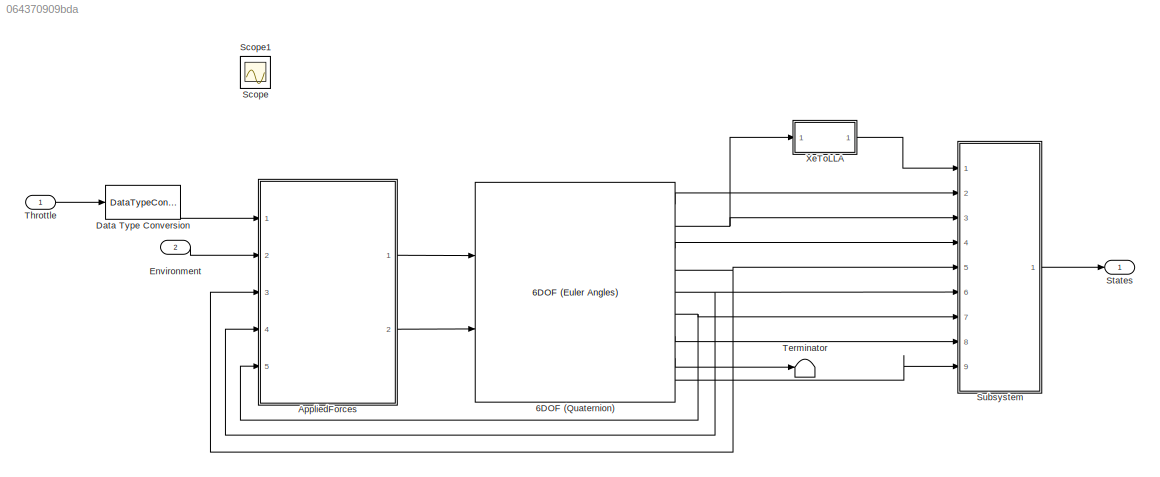
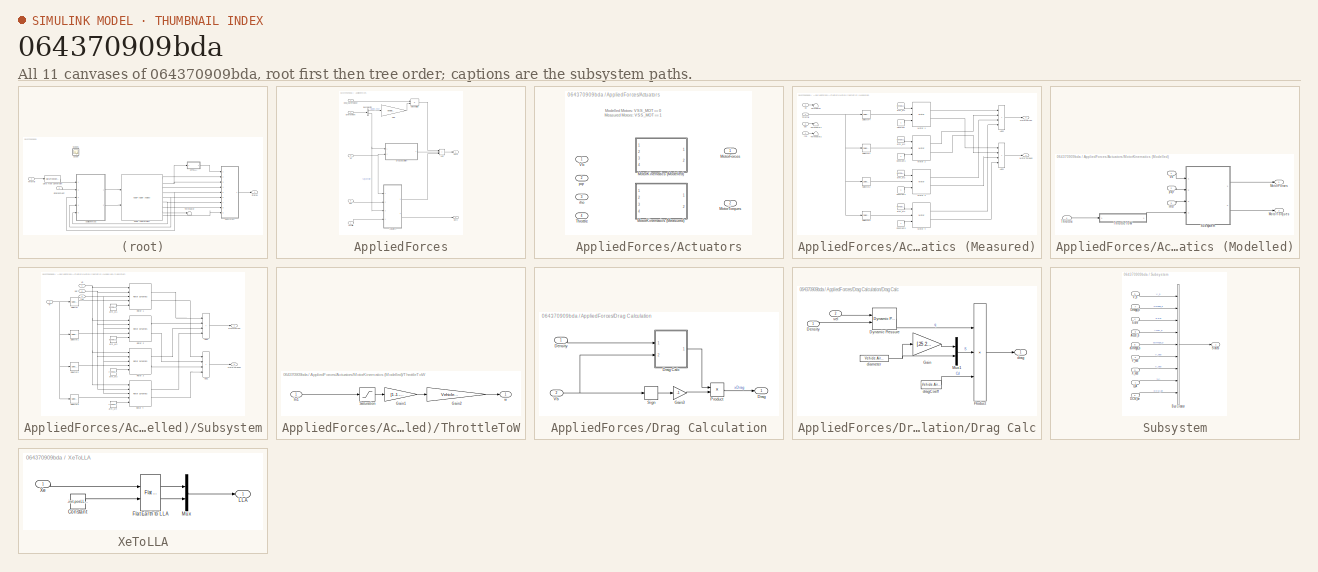
[diagram: thumbnail index - all 11 canvases of the model, root first then tree order]
MODEL slx_064370909bda
KIND model
CONFIG AbsTol = auto
CONFIG EnableMultiTasking = on
CONFIG FixedStep = Ts
CONFIG MaxStep = auto
CONFIG MinStep = auto
CONFIG RelTol = 1e-3
CONFIG SampleTimeConstraint = Unconstrained
CONFIG SolverName = ode3
CONFIG StartTime = 0.0
CONFIG StopTime = 10.0
BLOCK [Reference] 6DOF (Quaternion)  REF=shared6dof/6DOF (Euler Angles)
  Ports = [2, 9]
  SourceBlock = shared6dof/6DOF (Euler Angles)
  SourceProductBaseCode = AE,PW,MT,UV,VE,VP
  SourceType = 6DOF EoM (Body Axis)
BLOCK [SubSystem] AppliedForces
  Ports = [5, 2]
  RequestExecContextInheritance = off
  TreatAsAtomicUnit = on
BLOCK [SubSystem] AppliedForces/Actuators
  Ports = [4, 2]
  RequestExecContextInheritance = off
  Variant = on
BLOCK [Outport] AppliedForces/Actuators/MotorForces
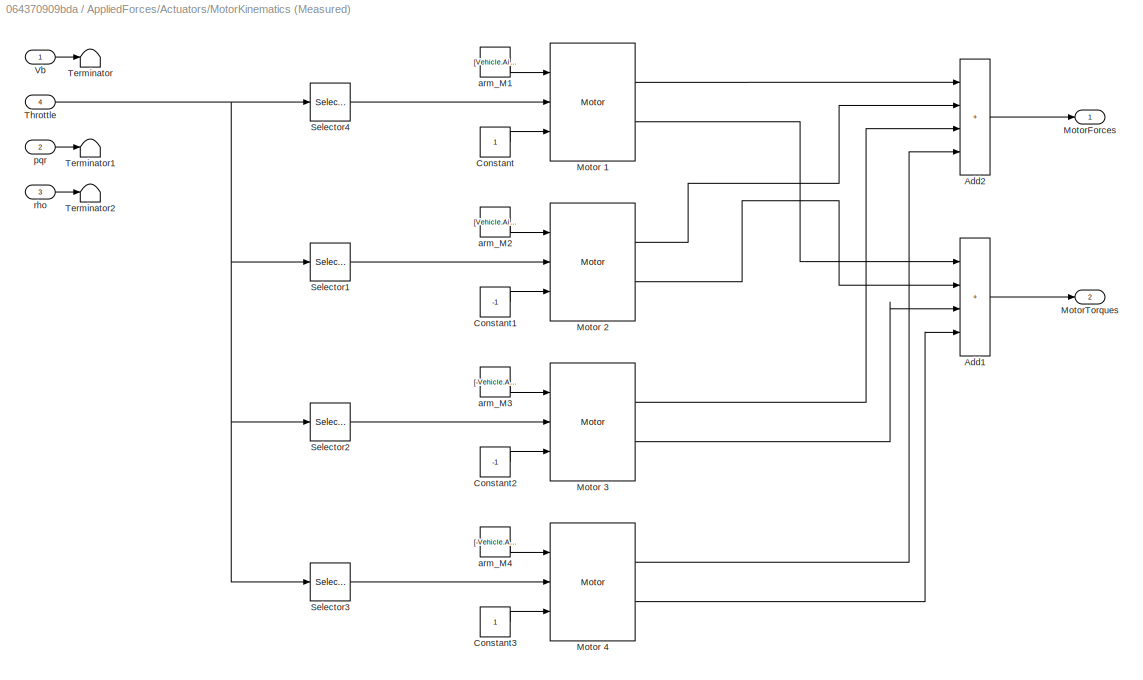
BLOCK [SubSystem] AppliedForces/Actuators/MotorKinematics (Measured)
  Ports = [4, 2]
  RequestExecContextInheritance = off
  VariantControl = VSS_measMotor
BLOCK [Sum] AppliedForces/Actuators/MotorKinematics (Measured)/Add1
  IconShape = rectangular
  Inputs = ++++
  Ports = [4, 1]
BLOCK [Sum] AppliedForces/Actuators/MotorKinematics (Measured)/Add2
  IconShape = rectangular
  Inputs = ++++
  Ports = [4, 1]
BLOCK [Constant] AppliedForces/Actuators/MotorKinematics (Measured)/Constant
BLOCK [Constant] AppliedForces/Actuators/MotorKinematics (Measured)/Constant1
  Value = -1
BLOCK [Constant] AppliedForces/Actuators/MotorKinematics (Measured)/Constant2
  Value = -1
BLOCK [Constant] AppliedForces/Actuators/MotorKinematics (Measured)/Constant3
BLOCK [Reference] AppliedForces/Actuators/MotorKinematics (Measured)/Motor 1  REF=motorLib/Motor
  Ports = [3, 2]
  SourceBlock = motorLib/Motor
  SourceType = SubSystem
BLOCK [Reference] AppliedForces/Actuators/MotorKinematics (Measured)/Motor 2  REF=motorLib/Motor
  Ports = [3, 2]
  SourceBlock = motorLib/Motor
  SourceType = SubSystem
BLOCK [Reference] AppliedForces/Actuators/MotorKinematics (Measured)/Motor 3  REF=motorLib/Motor
  Ports = [3, 2]
  SourceBlock = motorLib/Motor
  SourceType = SubSystem
BLOCK [Reference] AppliedForces/Actuators/MotorKinematics (Measured)/Motor 4  REF=motorLib/Motor
  Ports = [3, 2]
  SourceBlock = motorLib/Motor
  SourceType = SubSystem
BLOCK [Outport] AppliedForces/Actuators/MotorKinematics (Measured)/MotorForces
BLOCK [Outport] AppliedForces/Actuators/MotorKinematics (Measured)/MotorTorques
  Port = 2
BLOCK [Selector] AppliedForces/Actuators/MotorKinematics (Measured)/Selector1
  IndexOptions = Index vector (dialog)
  Indices = 2
  InputPortWidth = 4
  OutputSizes = 1
  Ports = [1, 1]
BLOCK [Selector] AppliedForces/Actuators/MotorKinematics (Measured)/Selector2
  IndexOptions = Index vector (dialog)
  Indices = 3
  InputPortWidth = 4
  OutputSizes = 1
  Ports = [1, 1]
BLOCK [Selector] AppliedForces/Actuators/MotorKinematics (Measured)/Selector3
  IndexOptions = Index vector (dialog)
  Indices = 4
  InputPortWidth = 4
  OutputSizes = 1
  Ports = [1, 1]
BLOCK [Selector] AppliedForces/Actuators/MotorKinematics (Measured)/Selector4
  IndexOptions = Index vector (dialog)
  Indices = 1
  InputPortWidth = 4
  OutputSizes = 1
  Ports = [1, 1]
BLOCK [Terminator] AppliedForces/Actuators/MotorKinematics (Measured)/Terminator
BLOCK [Terminator] AppliedForces/Actuators/MotorKinematics (Measured)/Terminator1
BLOCK [Terminator] AppliedForces/Actuators/MotorKinematics (Measured)/Terminator2
BLOCK [Inport] AppliedForces/Actuators/MotorKinematics (Measured)/Throttle
  Port = 4
BLOCK [Inport] AppliedForces/Actuators/MotorKinematics (Measured)/Vb
BLOCK [Constant] AppliedForces/Actuators/MotorKinematics (Measured)/arm_M1
  Value = [Vehicle.Airframe.orthagPropDistance Vehicle.Airframe.orthagPropDistance Vehicle.Airframe.propHeight]
BLOCK [Constant] AppliedForces/Actuators/MotorKinematics (Measured)/arm_M2
  Value = [Vehicle.Airframe.orthagPropDistance -Vehicle.Airframe.orthagPropDistance Vehicle.Airframe.propHeight]
BLOCK [Constant] AppliedForces/Actuators/MotorKinematics (Measured)/arm_M3
  Value = [-Vehicle.Airframe.orthagPropDistance Vehicle.Airframe.orthagPropDistance Vehicle.Airframe.propHeight]
BLOCK [Constant] AppliedForces/Actuators/MotorKinematics (Measured)/arm_M4
  Value = [-Vehicle.Airframe.orthagPropDistance -Vehicle.Airframe.orthagPropDistance Vehicle.Airframe.propHeight]
BLOCK [Inport] AppliedForces/Actuators/MotorKinematics (Measured)/pqr
  Port = 2
BLOCK [Inport] AppliedForces/Actuators/MotorKinematics (Measured)/rho
  Port = 3
BLOCK [SubSystem] AppliedForces/Actuators/MotorKinematics (Modelled)
  Ports = [4, 2]
  RequestExecContextInheritance = off
  VariantControl = VSS_modMotor
BLOCK [Outport] AppliedForces/Actuators/MotorKinematics (Modelled)/MotorForces
BLOCK [Outport] AppliedForces/Actuators/MotorKinematics (Modelled)/MotorTorques
  Port = 2
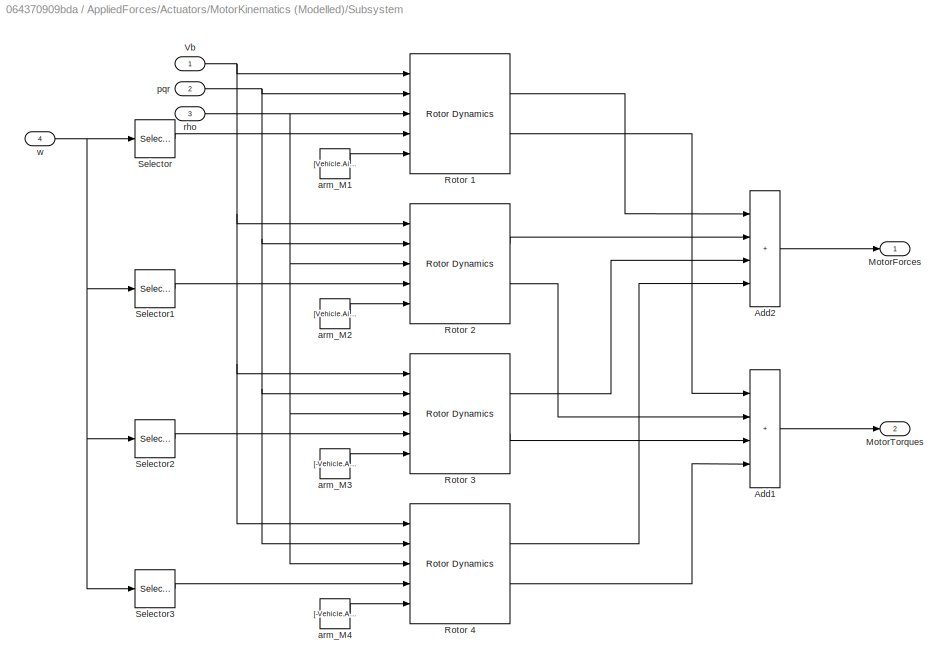
BLOCK [SubSystem] AppliedForces/Actuators/MotorKinematics (Modelled)/Subsystem
  Ports = [4, 2]
  RequestExecContextInheritance = off
BLOCK [Sum] AppliedForces/Actuators/MotorKinematics (Modelled)/Subsystem/Add1
  IconShape = rectangular
  Inputs = ++++
  Ports = [4, 1]
BLOCK [Sum] AppliedForces/Actuators/MotorKinematics (Modelled)/Subsystem/Add2
  IconShape = rectangular
  Inputs = ++++
  Ports = [4, 1]
BLOCK [Outport] AppliedForces/Actuators/MotorKinematics (Modelled)/Subsystem/MotorForces
BLOCK [Outport] AppliedForces/Actuators/MotorKinematics (Modelled)/Subsystem/MotorTorques
  Port = 2
BLOCK [Reference] AppliedForces/Actuators/MotorKinematics (Modelled)/Subsystem/Rotor 1  REF=dynamicsLibrary/Rotor Dynamics
  Ports = [5, 2]
  SourceBlock = dynamicsLibrary/Rotor Dynamics
BLOCK [Reference] AppliedForces/Actuators/MotorKinematics (Modelled)/Subsystem/Rotor 2  REF=dynamicsLibrary/Rotor Dynamics
  Ports = [5, 2]
  SourceBlock = dynamicsLibrary/Rotor Dynamics
BLOCK [Reference] AppliedForces/Actuators/MotorKinematics (Modelled)/Subsystem/Rotor 3  REF=dynamicsLibrary/Rotor Dynamics
  Ports = [5, 2]
  SourceBlock = dynamicsLibrary/Rotor Dynamics
BLOCK [Reference] AppliedForces/Actuators/MotorKinematics (Modelled)/Subsystem/Rotor 4  REF=dynamicsLibrary/Rotor Dynamics
  Ports = [5, 2]
  SourceBlock = dynamicsLibrary/Rotor Dynamics
BLOCK [Selector] AppliedForces/Actuators/MotorKinematics (Modelled)/Subsystem/Selector
  IndexOptions = Index vector (dialog)
  Indices = 1
  InputPortWidth = 4
  OutputSizes = 1
  Ports = [1, 1]
BLOCK [Selector] AppliedForces/Actuators/MotorKinematics (Modelled)/Subsystem/Selector1
  IndexOptions = Index vector (dialog)
  Indices = 2
  InputPortWidth = 4
  OutputSizes = 1
  Ports = [1, 1]
BLOCK [Selector] AppliedForces/Actuators/MotorKinematics (Modelled)/Subsystem/Selector2
  IndexOptions = Index vector (dialog)
  Indices = 3
  InputPortWidth = 4
  OutputSizes = 1
  Ports = [1, 1]
BLOCK [Selector] AppliedForces/Actuators/MotorKinematics (Modelled)/Subsystem/Selector3
  IndexOptions = Index vector (dialog)
  Indices = 4
  InputPortWidth = 4
  OutputSizes = 1
  Ports = [1, 1]
BLOCK [Inport] AppliedForces/Actuators/MotorKinematics (Modelled)/Subsystem/Vb
BLOCK [Constant] AppliedForces/Actuators/MotorKinematics (Modelled)/Subsystem/arm_M1
  Value = [Vehicle.Airframe.orthagPropDistance Vehicle.Airframe.orthagPropDistance Vehicle.Airframe.propHeight]
BLOCK [Constant] AppliedForces/Actuators/MotorKinematics (Modelled)/Subsystem/arm_M2
  Value = [Vehicle.Airframe.orthagPropDistance -Vehicle.Airframe.orthagPropDistance Vehicle.Airframe.propHeight]
BLOCK [Constant] AppliedForces/Actuators/MotorKinematics (Modelled)/Subsystem/arm_M3
  Value = [-Vehicle.Airframe.orthagPropDistance Vehicle.Airframe.orthagPropDistance Vehicle.Airframe.propHeight]
BLOCK [Constant] AppliedForces/Actuators/MotorKinematics (Modelled)/Subsystem/arm_M4
  Value = [-Vehicle.Airframe.orthagPropDistance -Vehicle.Airframe.orthagPropDistance Vehicle.Airframe.propHeight]
BLOCK [Inport] AppliedForces/Actuators/MotorKinematics (Modelled)/Subsystem/pqr
  Port = 2
BLOCK [Inport] AppliedForces/Actuators/MotorKinematics (Modelled)/Subsystem/rho
  Port = 3
BLOCK [Inport] AppliedForces/Actuators/MotorKinematics (Modelled)/Subsystem/w
  Port = 4
BLOCK [Inport] AppliedForces/Actuators/MotorKinematics (Modelled)/Throttle
  Port = 4
BLOCK [SubSystem] AppliedForces/Actuators/MotorKinematics (Modelled)/ThrottleToW
  Ports = [1, 1]
  RequestExecContextInheritance = off
BLOCK [Gain] AppliedForces/Actuators/MotorKinematics (Modelled)/ThrottleToW/Gain1
  Gain = [1 -1 -1 1]
BLOCK [Gain] AppliedForces/Actuators/MotorKinematics (Modelled)/ThrottleToW/Gain2
  Gain = Vehicle.Motor.Throttle2w
BLOCK [Inport] AppliedForces/Actuators/MotorKinematics (Modelled)/ThrottleToW/In1
BLOCK [Saturate] AppliedForces/Actuators/MotorKinematics (Modelled)/ThrottleToW/Saturation
  LinearizeAsGain = off
  LowerLimit = 30
  UpperLimit = 1000
BLOCK [Outport] AppliedForces/Actuators/MotorKinematics (Modelled)/ThrottleToW/w
BLOCK [Inport] AppliedForces/Actuators/MotorKinematics (Modelled)/Vb
BLOCK [Inport] AppliedForces/Actuators/MotorKinematics (Modelled)/pqr
  Port = 2
BLOCK [Inport] AppliedForces/Actuators/MotorKinematics (Modelled)/rho
  Port = 3
BLOCK [Outport] AppliedForces/Actuators/MotorTorques
  Port = 2
BLOCK [Inport] AppliedForces/Actuators/Throttle
  Port = 4
BLOCK [Inport] AppliedForces/Actuators/Vb
BLOCK [Inport] AppliedForces/Actuators/pqr
  Port = 2
BLOCK [Inport] AppliedForces/Actuators/rho
  Port = 3
BLOCK [Sum] AppliedForces/Add
  IconShape = rectangular
  Inputs = +++
  Ports = [3, 1]
BLOCK [BusSelector] AppliedForces/Bus Selector
  OutputSignals = Gravity_ned,AtmosphereBus.air_density
  Ports = [1, 2]
BLOCK [Inport] AppliedForces/DCM_earthToBody
  Port = 3
BLOCK [SubSystem] AppliedForces/Drag Calculation
  Ports = [2, 1]
  RequestExecContextInheritance = off
BLOCK [Inport] AppliedForces/Drag Calculation/Density
  Unit = kg/m^3
BLOCK [Outport] AppliedForces/Drag Calculation/Drag
  Unit = N
  VectorParamsAs1DForOutWhenUnconnected = off
BLOCK [SubSystem] AppliedForces/Drag Calculation/Drag Calc
  Ports = [2, 1]
  RequestExecContextInheritance = off
BLOCK [Inport] AppliedForces/Drag Calculation/Drag Calc/Density
  Unit = kg/m^3
BLOCK [Reference] AppliedForces/Drag Calculation/Drag Calc/Dynamic Pressure  REF=aerolibasang/Dynamic Pressure
  Ports = [2, 1]
  SourceBlock = aerolibasang/Dynamic Pressure
  SourceProductBaseCode = AE
  SourceType = Dynamic Pressure
BLOCK [Gain] AppliedForces/Drag Calculation/Drag Calc/Gain
  Gain = [.25 .25]
BLOCK [Mux] AppliedForces/Drag Calculation/Drag Calc/Mux1
  DisplayOption = bar
  Inputs = 2
  Ports = [2, 1]
BLOCK [Product] AppliedForces/Drag Calculation/Drag Calc/Product
  Inputs = 3
  Ports = [3, 1]
  RndMeth = Zero
BLOCK [Constant] AppliedForces/Drag Calculation/Drag Calc/diameter
  SampleTime = 0
  Value = Vehicle.Airframe.diameter
BLOCK [Outport] AppliedForces/Drag Calculation/Drag Calc/drag
  Unit = N
  VectorParamsAs1DForOutWhenUnconnected = off
BLOCK [Constant] AppliedForces/Drag Calculation/Drag Calc/dragCoeff
  SampleTime = 0
  Value = Vehicle.Airframe.Cdx
BLOCK [Inport] AppliedForces/Drag Calculation/Drag Calc/vel
  Port = 2
  Unit = m/s
BLOCK [Gain] AppliedForces/Drag Calculation/Gain3
  Gain = -1
BLOCK [Product] AppliedForces/Drag Calculation/Product
  Ports = [2, 1]
  RndMeth = Zero
BLOCK [Signum] AppliedForces/Drag Calculation/Sign
  ZeroCross = off
BLOCK [Inport] AppliedForces/Drag Calculation/Vb
  Port = 2
  Unit = m/second
BLOCK [Inport] AppliedForces/Environment
  OutDataTypeStr = Bus: EnvironmentBus
  Port = 2
BLOCK [Outport] AppliedForces/Fxyz
BLOCK [Gain] AppliedForces/Gain
  Gain = Vehicle.Airframe.mass
BLOCK [Product] AppliedForces/Matrix Multiply
  Multiplication = Matrix(*)
  Ports = [2, 1]
BLOCK [Outport] AppliedForces/Mxyz
  Port = 2
BLOCK [Inport] AppliedForces/Throttle
BLOCK [Inport] AppliedForces/Vb
  Port = 4
BLOCK [Inport] AppliedForces/pqr
  Port = 5
BLOCK [DataTypeConversion] Data Type Conversion
  OutDataTypeStr = double
  RndMeth = Floor
  SaturateOnIntegerOverflow = off
BLOCK [Inport] Environment
  Interpolate = off
  OutDataTypeStr = Bus: EnvironmentBus
  Port = 2
BLOCK [Scope] Scope
  Floating = off
  IOType = viewer
  NumInputPorts = 1
  Ports = []
  ScopeSpecificationString = Simulink.scopes.TimeScopeBlockCfg('CurrentConfiguration', extmgr.ConfigurationSet(extmgr.Configuration('Core','General UI',true),extmgr.Configuration('Core','Source UI',true),extmgr.Configuration('Sources','WiredSimulink',true),extmgr.Configuration('Visuals','Time Domain',true,'SerializedDisplays',{struct('MinYLimReal','-7.51941','MaxYLimReal','0.83549','YLabelReal','','MinYLimMag','0.00000','MaxY...<+1599ch>
BLOCK [Scope] Scope1
  Floating = off
  IOType = viewer
  NumInputPorts = 1
  Ports = []
  ScopeSpecificationString = Simulink.scopes.TimeScopeBlockCfg('CurrentConfiguration', extmgr.ConfigurationSet(extmgr.Configuration('Core','General UI',true),extmgr.Configuration('Core','Source UI',true),extmgr.Configuration('Sources','WiredSimulink',true,'DataLoggingVariableName','ScopeData1'),extmgr.Configuration('Visuals','Time Domain',true,'SerializedDisplays',{struct('MinYLimReal','-0.64986','MaxYLimReal','0.64986','YLab...<+1653ch>
BLOCK [Outport] States
  OutDataTypeStr = Bus: StatesBus
BLOCK [SubSystem] Subsystem
  Ports = [9, 1]
  RequestExecContextInheritance = off
BLOCK [Inport] Subsystem/Accel_b
  Port = 9
BLOCK [BusCreator] Subsystem/Bus Creator
  DisplayOption = bar
  InheritFromInputs = off
  Inputs = 9
  OutDataTypeStr = Bus: StatesBus
  Ports = [9, 1]
BLOCK [Inport] Subsystem/DCM_be
  Port = 5
BLOCK [Inport] Subsystem/Euler
  Port = 4
BLOCK [Inport] Subsystem/LLA
BLOCK [Inport] Subsystem/Omega_b
  Port = 7
BLOCK [Outport] Subsystem/States
BLOCK [Inport] Subsystem/V_b
  Port = 6
BLOCK [Inport] Subsystem/V_ned
  Port = 2
BLOCK [Inport] Subsystem/X_ned
  Port = 3
BLOCK [Inport] Subsystem/dOmega_b
  Port = 8
BLOCK [Terminator] Terminator
BLOCK [Inport] Throttle
  OutDataTypeStr = uint16
  PortDimensions = [1 4]
BLOCK [SubSystem] XeToLLA
  Ports = [1, 1]
  RequestExecContextInheritance = off
BLOCK [Constant] XeToLLA/Constant
  Value = -init.posLLA(3)
BLOCK [Reference] XeToLLA/Flat Earth to LLA  REF=aerolibtransform2/Flat Earth to LLA
  Ports = [2, 2]
  SourceBlock = aerolibtransform2/Flat Earth to LLA
  SourceProductBaseCode = AE
  SourceType = Flat Earth to LLA
BLOCK [Outport] XeToLLA/LLA
BLOCK [Mux] XeToLLA/Mux
  DisplayOption = bar
  Inputs = 2
  Ports = [2, 1]
BLOCK [Inport] XeToLLA/Xe
ANNOTATION AppliedForces/Actuators: Modelled Motors: VSS_MOT == 0 Measured Motors : VSS_MOT == 1
LINE 6DOF (Quaternion):1 -> Subsystem:2
NET 6DOF (Quaternion):2 -> Subsystem:3, XeToLLA:1
LINE 6DOF (Quaternion):3 -> Subsystem:4
NET 6DOF (Quaternion):4 -> AppliedForces:3, Subsystem:5
NET 6DOF (Quaternion):5 -> AppliedForces:4, Subsystem:6
NET 6DOF (Quaternion):6 -> AppliedForces:5, Subsystem:7
LINE 6DOF (Quaternion):7 -> Subsystem:8
LINE 6DOF (Quaternion):8 -> Terminator:1
LINE 6DOF (Quaternion):9 -> Subsystem:9
LINE AppliedForces/Actuators/MotorKinematics (Measured)/Add1:1 -> AppliedForces/Actuators/MotorKinematics (Measured)/MotorTorques:1
LINE AppliedForces/Actuators/MotorKinematics (Measured)/Add2:1 -> AppliedForces/Actuators/MotorKinematics (Measured)/MotorForces:1
LINE AppliedForces/Actuators/MotorKinematics (Measured)/Constant1:1 -> AppliedForces/Actuators/MotorKinematics (Measured)/Motor 2:3
LINE AppliedForces/Actuators/MotorKinematics (Measured)/Constant2:1 -> AppliedForces/Actuators/MotorKinematics (Measured)/Motor 3:3
LINE AppliedForces/Actuators/MotorKinematics (Measured)/Constant3:1 -> AppliedForces/Actuators/MotorKinematics (Measured)/Motor 4:3
LINE AppliedForces/Actuators/MotorKinematics (Measured)/Constant:1 -> AppliedForces/Actuators/MotorKinematics (Measured)/Motor 1:3
LINE AppliedForces/Actuators/MotorKinematics (Measured)/Motor 1:1 -> AppliedForces/Actuators/MotorKinematics (Measured)/Add2:1
LINE AppliedForces/Actuators/MotorKinematics (Measured)/Motor 1:2 -> AppliedForces/Actuators/MotorKinematics (Measured)/Add1:1
LINE AppliedForces/Actuators/MotorKinematics (Measured)/Motor 2:1 -> AppliedForces/Actuators/MotorKinematics (Measured)/Add2:2
LINE AppliedForces/Actuators/MotorKinematics (Measured)/Motor 2:2 -> AppliedForces/Actuators/MotorKinematics (Measured)/Add1:2
LINE AppliedForces/Actuators/MotorKinematics (Measured)/Motor 3:1 -> AppliedForces/Actuators/MotorKinematics (Measured)/Add2:3
LINE AppliedForces/Actuators/MotorKinematics (Measured)/Motor 3:2 -> AppliedForces/Actuators/MotorKinematics (Measured)/Add1:3
LINE AppliedForces/Actuators/MotorKinematics (Measured)/Motor 4:1 -> AppliedForces/Actuators/MotorKinematics (Measured)/Add2:4
LINE AppliedForces/Actuators/MotorKinematics (Measured)/Motor 4:2 -> AppliedForces/Actuators/MotorKinematics (Measured)/Add1:4
LINE AppliedForces/Actuators/MotorKinematics (Measured)/Selector1:1 -> AppliedForces/Actuators/MotorKinematics (Measured)/Motor 2:2
LINE AppliedForces/Actuators/MotorKinematics (Measured)/Selector2:1 -> AppliedForces/Actuators/MotorKinematics (Measured)/Motor 3:2
LINE AppliedForces/Actuators/MotorKinematics (Measured)/Selector3:1 -> AppliedForces/Actuators/MotorKinematics (Measured)/Motor 4:2
LINE AppliedForces/Actuators/MotorKinematics (Measured)/Selector4:1 -> AppliedForces/Actuators/MotorKinematics (Measured)/Motor 1:2
NET AppliedForces/Actuators/MotorKinematics (Measured)/Throttle:1 -> AppliedForces/Actuators/MotorKinematics (Measured)/Selector1:1, AppliedForces/Actuators/MotorKinematics (Measured)/Selector2:1, AppliedForces/Actuators/MotorKinematics (Measured)/Selector3:1, AppliedForces/Actuators/MotorKinematics (Measured)/Selector4:1
LINE AppliedForces/Actuators/MotorKinematics (Measured)/Vb:1 -> AppliedForces/Actuators/MotorKinematics (Measured)/Terminator:1
LINE AppliedForces/Actuators/MotorKinematics (Measured)/arm_M1:1 -> AppliedForces/Actuators/MotorKinematics (Measured)/Motor 1:1
LINE AppliedForces/Actuators/MotorKinematics (Measured)/arm_M2:1 -> AppliedForces/Actuators/MotorKinematics (Measured)/Motor 2:1
LINE AppliedForces/Actuators/MotorKinematics (Measured)/arm_M3:1 -> AppliedForces/Actuators/MotorKinematics (Measured)/Motor 3:1
LINE AppliedForces/Actuators/MotorKinematics (Measured)/arm_M4:1 -> AppliedForces/Actuators/MotorKinematics (Measured)/Motor 4:1
LINE AppliedForces/Actuators/MotorKinematics (Measured)/pqr:1 -> AppliedForces/Actuators/MotorKinematics (Measured)/Terminator1:1
LINE AppliedForces/Actuators/MotorKinematics (Measured)/rho:1 -> AppliedForces/Actuators/MotorKinematics (Measured)/Terminator2:1
LINE AppliedForces/Actuators/MotorKinematics (Modelled)/Subsystem/Add1:1 -> AppliedForces/Actuators/MotorKinematics (Modelled)/Subsystem/MotorTorques:1
LINE AppliedForces/Actuators/MotorKinematics (Modelled)/Subsystem/Add2:1 -> AppliedForces/Actuators/MotorKinematics (Modelled)/Subsystem/MotorForces:1
LINE AppliedForces/Actuators/MotorKinematics (Modelled)/Subsystem/Rotor 1:1 -> AppliedForces/Actuators/MotorKinematics (Modelled)/Subsystem/Add2:1
LINE AppliedForces/Actuators/MotorKinematics (Modelled)/Subsystem/Rotor 1:2 -> AppliedForces/Actuators/MotorKinematics (Modelled)/Subsystem/Add1:1
LINE AppliedForces/Actuators/MotorKinematics (Modelled)/Subsystem/Rotor 2:1 -> AppliedForces/Actuators/MotorKinematics (Modelled)/Subsystem/Add2:2
LINE AppliedForces/Actuators/MotorKinematics (Modelled)/Subsystem/Rotor 2:2 -> AppliedForces/Actuators/MotorKinematics (Modelled)/Subsystem/Add1:2
LINE AppliedForces/Actuators/MotorKinematics (Modelled)/Subsystem/Rotor 3:1 -> AppliedForces/Actuators/MotorKinematics (Modelled)/Subsystem/Add2:3
LINE AppliedForces/Actuators/MotorKinematics (Modelled)/Subsystem/Rotor 3:2 -> AppliedForces/Actuators/MotorKinematics (Modelled)/Subsystem/Add1:3
LINE AppliedForces/Actuators/MotorKinematics (Modelled)/Subsystem/Rotor 4:1 -> AppliedForces/Actuators/MotorKinematics (Modelled)/Subsystem/Add2:4
LINE AppliedForces/Actuators/MotorKinematics (Modelled)/Subsystem/Rotor 4:2 -> AppliedForces/Actuators/MotorKinematics (Modelled)/Subsystem/Add1:4
LINE AppliedForces/Actuators/MotorKinematics (Modelled)/Subsystem/Selector1:1 -> AppliedForces/Actuators/MotorKinematics (Modelled)/Subsystem/Rotor 2:4
LINE AppliedForces/Actuators/MotorKinematics (Modelled)/Subsystem/Selector2:1 -> AppliedForces/Actuators/MotorKinematics (Modelled)/Subsystem/Rotor 3:4
LINE AppliedForces/Actuators/MotorKinematics (Modelled)/Subsystem/Selector3:1 -> AppliedForces/Actuators/MotorKinematics (Modelled)/Subsystem/Rotor 4:4
LINE AppliedForces/Actuators/MotorKinematics (Modelled)/Subsystem/Selector:1 -> AppliedForces/Actuators/MotorKinematics (Modelled)/Subsystem/Rotor 1:4
NET AppliedForces/Actuators/MotorKinematics (Modelled)/Subsystem/Vb:1 -> AppliedForces/Actuators/MotorKinematics (Modelled)/Subsystem/Rotor 1:1, AppliedForces/Actuators/MotorKinematics (Modelled)/Subsystem/Rotor 2:1, AppliedForces/Actuators/MotorKinematics (Modelled)/Subsystem/Rotor 3:1, AppliedForces/Actuators/MotorKinematics (Modelled)/Subsystem/Rotor 4:1
LINE AppliedForces/Actuators/MotorKinematics (Modelled)/Subsystem/arm_M1:1 -> AppliedForces/Actuators/MotorKinematics (Modelled)/Subsystem/Rotor 1:5
LINE AppliedForces/Actuators/MotorKinematics (Modelled)/Subsystem/arm_M2:1 -> AppliedForces/Actuators/MotorKinematics (Modelled)/Subsystem/Rotor 2:5
LINE AppliedForces/Actuators/MotorKinematics (Modelled)/Subsystem/arm_M3:1 -> AppliedForces/Actuators/MotorKinematics (Modelled)/Subsystem/Rotor 3:5
LINE AppliedForces/Actuators/MotorKinematics (Modelled)/Subsystem/arm_M4:1 -> AppliedForces/Actuators/MotorKinematics (Modelled)/Subsystem/Rotor 4:5
NET AppliedForces/Actuators/MotorKinematics (Modelled)/Subsystem/pqr:1 -> AppliedForces/Actuators/MotorKinematics (Modelled)/Subsystem/Rotor 1:2, AppliedForces/Actuators/MotorKinematics (Modelled)/Subsystem/Rotor 2:2, AppliedForces/Actuators/MotorKinematics (Modelled)/Subsystem/Rotor 3:2, AppliedForces/Actuators/MotorKinematics (Modelled)/Subsystem/Rotor 4:2
NET AppliedForces/Actuators/MotorKinematics (Modelled)/Subsystem/rho:1 -> AppliedForces/Actuators/MotorKinematics (Modelled)/Subsystem/Rotor 1:3, AppliedForces/Actuators/MotorKinematics (Modelled)/Subsystem/Rotor 2:3, AppliedForces/Actuators/MotorKinematics (Modelled)/Subsystem/Rotor 3:3, AppliedForces/Actuators/MotorKinematics (Modelled)/Subsystem/Rotor 4:3
NET AppliedForces/Actuators/MotorKinematics (Modelled)/Subsystem/w:1 -> AppliedForces/Actuators/MotorKinematics (Modelled)/Subsystem/Selector1:1, AppliedForces/Actuators/MotorKinematics (Modelled)/Subsystem/Selector2:1, AppliedForces/Actuators/MotorKinematics (Modelled)/Subsystem/Selector3:1, AppliedForces/Actuators/MotorKinematics (Modelled)/Subsystem/Selector:1
LINE AppliedForces/Actuators/MotorKinematics (Modelled)/Subsystem:1 -> AppliedForces/Actuators/MotorKinematics (Modelled)/MotorForces:1
LINE AppliedForces/Actuators/MotorKinematics (Modelled)/Subsystem:2 -> AppliedForces/Actuators/MotorKinematics (Modelled)/MotorTorques:1
LINE AppliedForces/Actuators/MotorKinematics (Modelled)/Throttle:1 -> AppliedForces/Actuators/MotorKinematics (Modelled)/ThrottleToW:1
LINE AppliedForces/Actuators/MotorKinematics (Modelled)/ThrottleToW/Gain1:1 -> AppliedForces/Actuators/MotorKinematics (Modelled)/ThrottleToW/Gain2:1
LINE AppliedForces/Actuators/MotorKinematics (Modelled)/ThrottleToW/Gain2:1 -> AppliedForces/Actuators/MotorKinematics (Modelled)/ThrottleToW/w:1
LINE AppliedForces/Actuators/MotorKinematics (Modelled)/ThrottleToW/In1:1 -> AppliedForces/Actuators/MotorKinematics (Modelled)/ThrottleToW/Saturation:1
LINE AppliedForces/Actuators/MotorKinematics (Modelled)/ThrottleToW/Saturation:1 -> AppliedForces/Actuators/MotorKinematics (Modelled)/ThrottleToW/Gain1:1
LINE AppliedForces/Actuators/MotorKinematics (Modelled)/ThrottleToW:1 -> AppliedForces/Actuators/MotorKinematics (Modelled)/Subsystem:4
LINE AppliedForces/Actuators/MotorKinematics (Modelled)/Vb:1 -> AppliedForces/Actuators/MotorKinematics (Modelled)/Subsystem:1
LINE AppliedForces/Actuators/MotorKinematics (Modelled)/pqr:1 -> AppliedForces/Actuators/MotorKinematics (Modelled)/Subsystem:2
LINE AppliedForces/Actuators/MotorKinematics (Modelled)/rho:1 -> AppliedForces/Actuators/MotorKinematics (Modelled)/Subsystem:3
LINE AppliedForces/Actuators:1 -> AppliedForces/Add:3
LINE AppliedForces/Actuators:2 -> AppliedForces/Mxyz:1
LINE AppliedForces/Add:1 -> AppliedForces/Fxyz:1
LINE AppliedForces/Bus Selector:1 -> AppliedForces/Gain:1
NET AppliedForces/Bus Selector:2 -> AppliedForces/Actuators:3, AppliedForces/Drag Calculation:1
LINE AppliedForces/DCM_earthToBody:1 -> AppliedForces/Matrix Multiply:1
LINE AppliedForces/Drag Calculation/Density:1 -> AppliedForces/Drag Calculation/Drag Calc:1
LINE AppliedForces/Drag Calculation/Drag Calc/Density:1 -> AppliedForces/Drag Calculation/Drag Calc/Dynamic Pressure:2
LINE AppliedForces/Drag Calculation/Drag Calc/Dynamic Pressure:1 -> AppliedForces/Drag Calculation/Drag Calc/Product:1
LINE AppliedForces/Drag Calculation/Drag Calc/Gain:1 -> AppliedForces/Drag Calculation/Drag Calc/Mux1:1
LINE AppliedForces/Drag Calculation/Drag Calc/Mux1:1 -> AppliedForces/Drag Calculation/Drag Calc/Product:2
LINE AppliedForces/Drag Calculation/Drag Calc/Product:1 -> AppliedForces/Drag Calculation/Drag Calc/drag:1
NET AppliedForces/Drag Calculation/Drag Calc/diameter:1 -> AppliedForces/Drag Calculation/Drag Calc/Gain:1, AppliedForces/Drag Calculation/Drag Calc/Mux1:2
LINE AppliedForces/Drag Calculation/Drag Calc/dragCoeff:1 -> AppliedForces/Drag Calculation/Drag Calc/Product:3
LINE AppliedForces/Drag Calculation/Drag Calc/vel:1 -> AppliedForces/Drag Calculation/Drag Calc/Dynamic Pressure:1
LINE AppliedForces/Drag Calculation/Drag Calc:1 -> AppliedForces/Drag Calculation/Product:1
LINE AppliedForces/Drag Calculation/Gain3:1 -> AppliedForces/Drag Calculation/Product:2
LINE AppliedForces/Drag Calculation/Product:1 -> AppliedForces/Drag Calculation/Drag:1
LINE AppliedForces/Drag Calculation/Sign:1 -> AppliedForces/Drag Calculation/Gain3:1
NET AppliedForces/Drag Calculation/Vb:1 -> AppliedForces/Drag Calculation/Drag Calc:2, AppliedForces/Drag Calculation/Sign:1
LINE AppliedForces/Drag Calculation:1 -> AppliedForces/Add:2
LINE AppliedForces/Environment:1 -> AppliedForces/Bus Selector:1
LINE AppliedForces/Gain:1 -> AppliedForces/Matrix Multiply:2
LINE AppliedForces/Matrix Multiply:1 -> AppliedForces/Add:1
LINE AppliedForces/Throttle:1 -> AppliedForces/Actuators:4
NET AppliedForces/Vb:1 -> AppliedForces/Actuators:1, AppliedForces/Drag Calculation:2
LINE AppliedForces/pqr:1 -> AppliedForces/Actuators:2
LINE AppliedForces:1 -> 6DOF (Quaternion):1
LINE AppliedForces:2 -> 6DOF (Quaternion):2
LINE Data Type Conversion:1 -> AppliedForces:1
LINE Environment:1 -> AppliedForces:2
LINE Subsystem/Accel_b:1 -> Subsystem/Bus Creator:4
LINE Subsystem/Bus Creator:1 -> Subsystem/States:1
LINE Subsystem/DCM_be:1 -> Subsystem/Bus Creator:9
LINE Subsystem/Euler:1 -> Subsystem/Bus Creator:3
LINE Subsystem/LLA:1 -> Subsystem/Bus Creator:8
LINE Subsystem/Omega_b:1 -> Subsystem/Bus Creator:2
LINE Subsystem/V_b:1 -> Subsystem/Bus Creator:1
LINE Subsystem/V_ned:1 -> Subsystem/Bus Creator:6
LINE Subsystem/X_ned:1 -> Subsystem/Bus Creator:7
LINE Subsystem/dOmega_b:1 -> Subsystem/Bus Creator:5
LINE Subsystem:1 -> States:1
LINE Throttle:1 -> Data Type Conversion:1
LINE XeToLLA/Constant:1 -> XeToLLA/Flat Earth to LLA:2
LINE XeToLLA/Flat Earth to LLA:1 -> XeToLLA/Mux:1
LINE XeToLLA/Flat Earth to LLA:2 -> XeToLLA/Mux:2
LINE XeToLLA/Mux:1 -> XeToLLA/LLA:1
LINE XeToLLA/Xe:1 -> XeToLLA/Flat Earth to LLA:1
LINE XeToLLA:1 -> Subsystem:1
note: NET lines group one-source signal fan-out (src -> all destinations, sorted); 1:1 wires keep LINE
